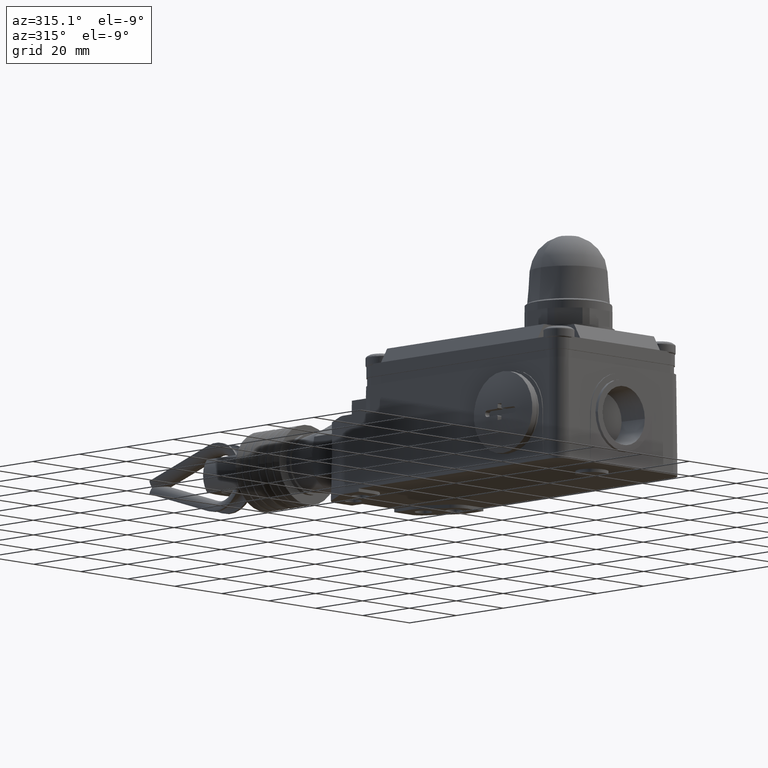
[diagram: clean part render]
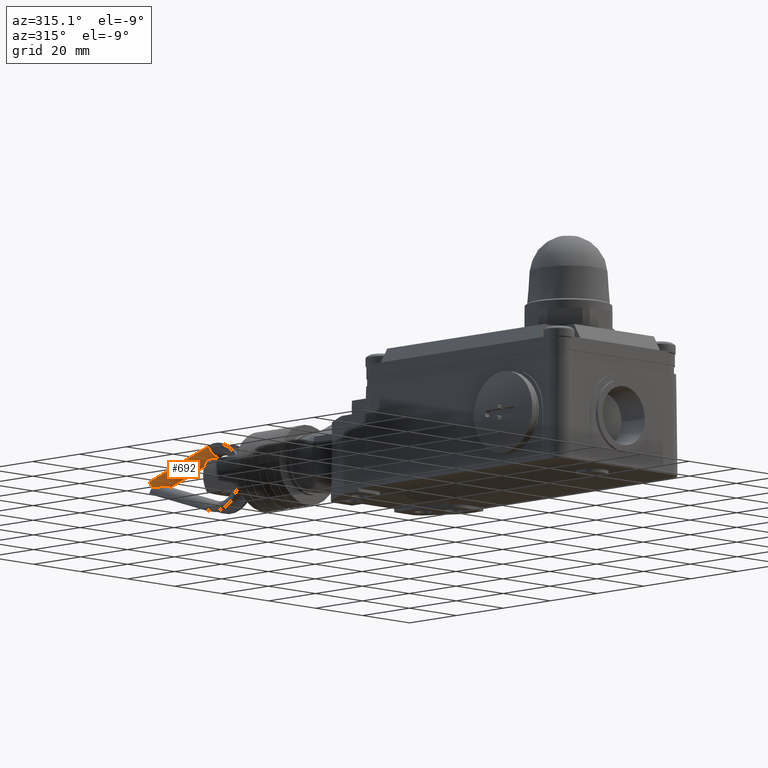
[diagram: same view with one face highlighted and labeled with its STEP entity id]
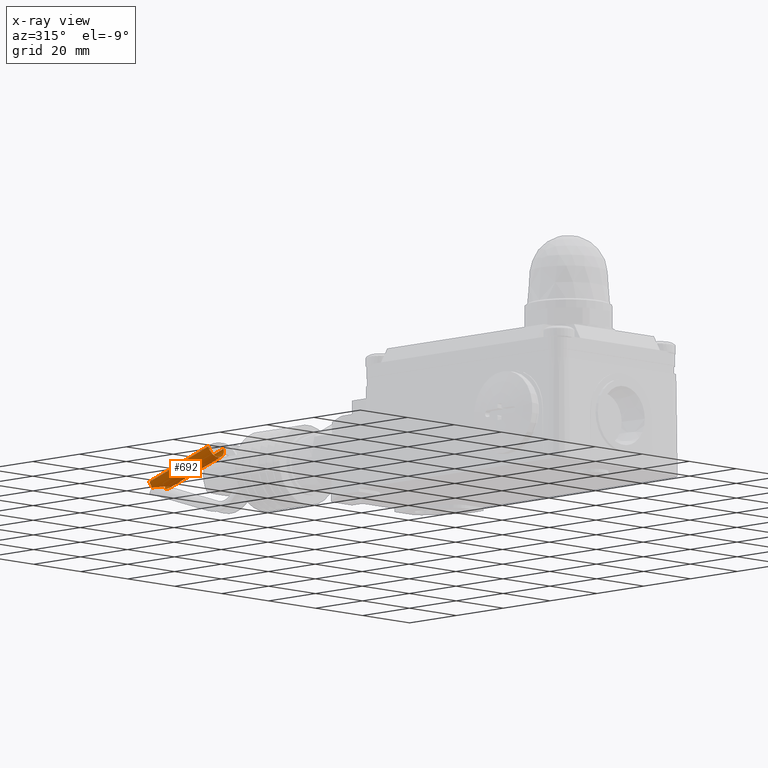
[diagram: x-ray of the same camera — body ghosted, the highlighted face saturated]
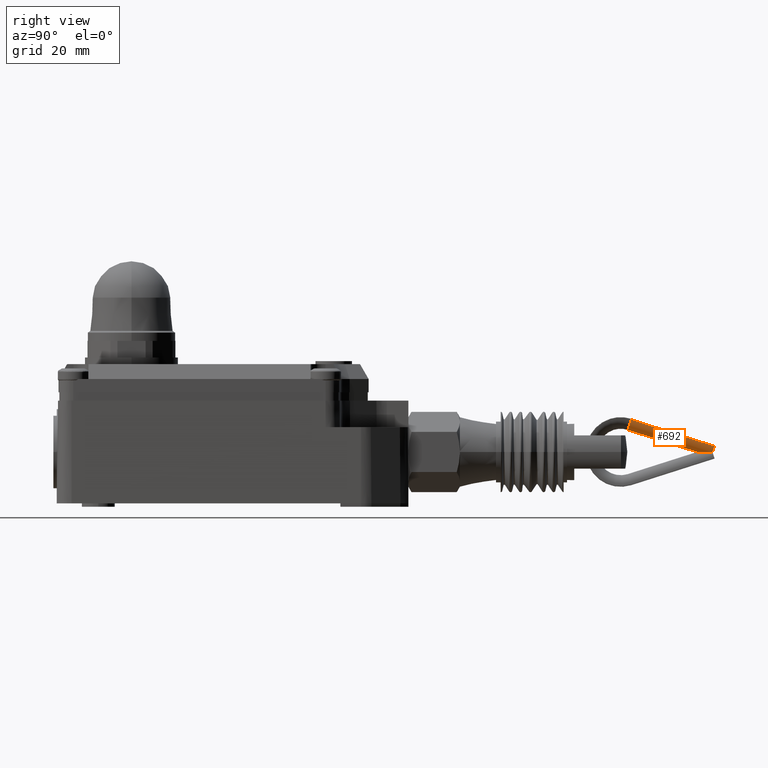
[diagram: same view with one face highlighted and labeled with its STEP entity id]
A machine part, auxiliary view. The second image highlights one B-rep face of the part: STEP entity #692.
The next image is the same camera in x-ray: the body ghosted, the highlighted face saturated — about 0% of this face is hidden behind the body in this view.
A second angle (right view) of the same face is appended — the face is thin or edge-on in the first view.
In plain terms, the highlighted cylindrical surface (edge-blend (fillet) strip) has radius 3.25 mm, axis along (0, -0.9527, 0.304).
Its self-contained STEP definition (entity closure, byte-faithful):
#692=ADVANCED_FACE('',(#1900),#1901,.T.);
#1900=FACE_OUTER_BOUND('',#3677,.T.);
#1901=CYLINDRICAL_SURFACE('',#3678,3.25);
#3677=EDGE_LOOP('',(#5587,#5588,#5589,#5590,#5591,#5592,#5593));
#3678=AXIS2_PLACEMENT_3D('',#5594,#5595,#5596);
#5587=ORIENTED_EDGE('',*,*,#10610,.T.);
#5588=ORIENTED_EDGE('',*,*,#10623,.T.);
#5589=ORIENTED_EDGE('',*,*,#10624,.F.);
#5590=ORIENTED_EDGE('',*,*,#10520,.F.);
#5591=ORIENTED_EDGE('',*,*,#10625,.F.);
#5592=ORIENTED_EDGE('',*,*,#10626,.T.);
#5593=ORIENTED_EDGE('',*,*,#10588,.T.);
#5594=CARTESIAN_POINT('',(31.9104298117,174.156338991378,26.2647805477837));
#5595=DIRECTION('',(1.12027584173398E-031,-0.952661481265261,0.30403306088891));
#5596=DIRECTION('',(1.0,-9.08773665816504E-017,-2.84756422239208E-016));
#10520=EDGE_CURVE('',#12525,#12528,#12529,.T.);
#10588=EDGE_CURVE('',#12644,#12642,#12645,.T.);
#10610=EDGE_CURVE('',#12642,#12670,#12671,.T.);
#10623=EDGE_CURVE('',#12670,#12686,#12687,.T.);
#10624=EDGE_CURVE('',#12528,#12686,#12688,.T.);
#10625=EDGE_CURVE('',#12689,#12525,#12690,.T.);
#10626=EDGE_CURVE('',#12689,#12644,#12691,.T.);
#12525=VERTEX_POINT('',#15441);
#12528=VERTEX_POINT('',#15444);
#12529=CIRCLE('',#15445,3.25);
#12642=VERTEX_POINT('',#15622);
#12644=VERTEX_POINT('',#15625);
#12645=CIRCLE('',#15626,3.25);
#12670=VERTEX_POINT('',#15710);
#12671=ELLIPSE('',#15711,10.6896269454969,3.25);
#12686=VERTEX_POINT('',#15733);
#12687=CIRCLE('',#15734,3.25);
#12688=LINE('',#15735,#15736);
#12689=VERTEX_POINT('',#15737);
#12690=CIRCLE('',#15738,3.25);
#12691=LINE('',#15739,#15740);
#15441=CARTESIAN_POINT('',(31.9104298117,173.168231426735,23.1686303686934));
#15444=CARTESIAN_POINT('',(35.1604298117,174.156338874861,26.2647801827296));
#15445=AXIS2_PLACEMENT_3D('',#19839,#19840,#19841);
#15622=CARTESIAN_POINT('',(29.2264324151537,198.725595061291,16.5));
#15625=CARTESIAN_POINT('',(28.6604298117,199.282785559749,18.2459085668387));
#15626=AXIS2_PLACEMENT_3D('',#19955,#19956,#19957);
#15710=CARTESIAN_POINT('',(34.5944272082463,198.725595061291,16.5));
#15711=AXIS2_PLACEMENT_3D('',#19976,#19977,#19978);
#15733=CARTESIAN_POINT('',(35.1604298117,199.282785559749,18.2459085668387));
#15734=AXIS2_PLACEMENT_3D('',#19989,#19990,#19991);
#15735=CARTESIAN_POINT('',(35.1604298117,174.156338991378,26.2647805477837));
#15736=VECTOR('',#19992,1.0);
#15737=CARTESIAN_POINT('',(28.6604298117,174.156338874861,26.2647801827296));
#15738=AXIS2_PLACEMENT_3D('',#19993,#19994,#19995);
#15739=CARTESIAN_POINT('',(28.6604298117,174.156338991378,26.2647805477837));
#15740=VECTOR('',#19996,1.0);
#19839=CARTESIAN_POINT('',(31.9104298117,174.156338874861,26.2647801827296));
#19840=DIRECTION('',(0.0,-0.952661481241913,0.304033060962067));
#19841=DIRECTION('',(-1.0,0.0,0.0));
#19955=CARTESIAN_POINT('',(31.9104298117,199.282785559749,18.2459085668387));
#19956=DIRECTION('',(1.12027584173398E-031,-0.952661481265261,0.30403306088891));
#19957=DIRECTION('',(1.0,-9.08773665816504E-017,-2.84756422239208E-016));
#19976=CARTESIAN_POINT('',(31.9104298117,204.753440088488,16.5));
#19977=DIRECTION('',(-1.51257181536428E-047,-4.98527268105054E-016,1.0));
#19978=DIRECTION('',(9.08773665816502E-017,-1.0,-4.98527268105054E-016));
#19989=CARTESIAN_POINT('',(31.9104298117,199.282785559749,18.2459085668387));
#19990=DIRECTION('',(1.12027584173398E-031,-0.952661481265261,0.30403306088891));
#19991=DIRECTION('',(1.0,-9.08773665816504E-017,-2.84756422239208E-016));
#19992=DIRECTION('',(0.0,0.952661481265261,-0.30403306088891));
#19993=CARTESIAN_POINT('',(31.9104298117,174.156338874861,26.2647801827296));
#19994=DIRECTION('',(0.0,-0.952661481241913,0.304033060962067));
#19995=DIRECTION('',(-1.0,0.0,0.0));
#19996=DIRECTION('',(0.0,0.952661481265261,-0.30403306088891));